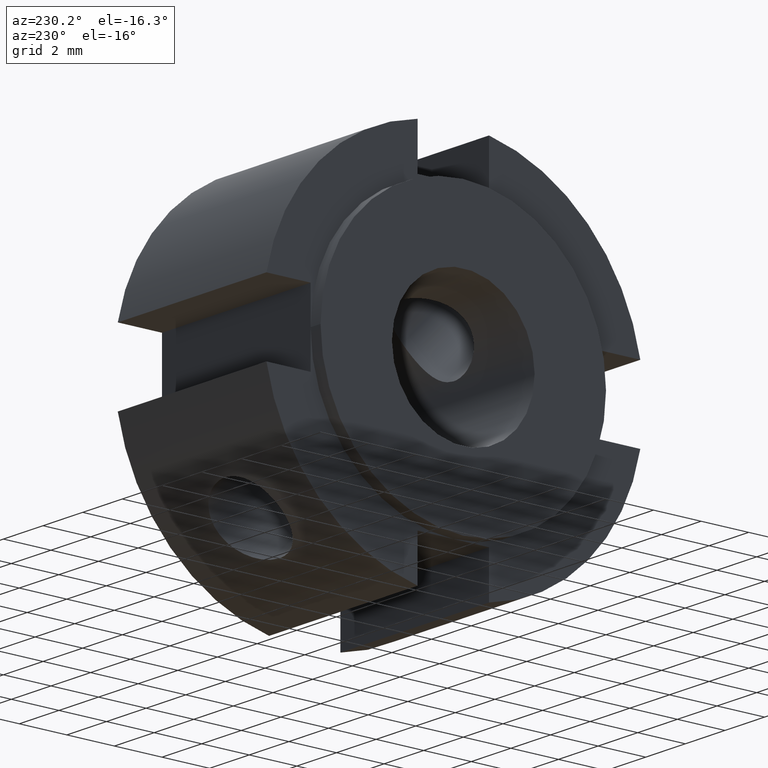
[diagram: clean part render]
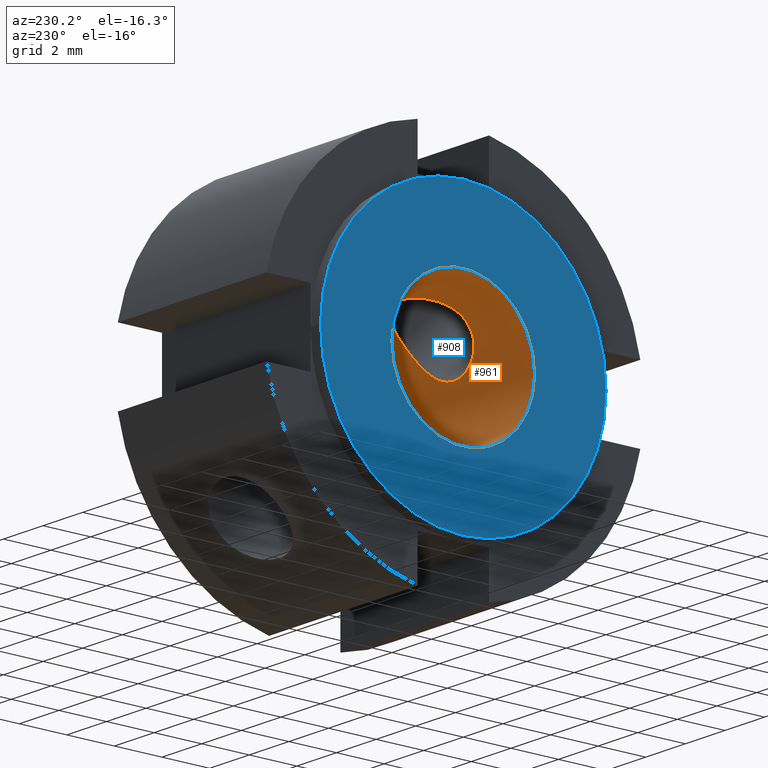
[diagram: same view with the hole feature highlighted: cylindrical wall and planar end face, labeled with their STEP entity ids]
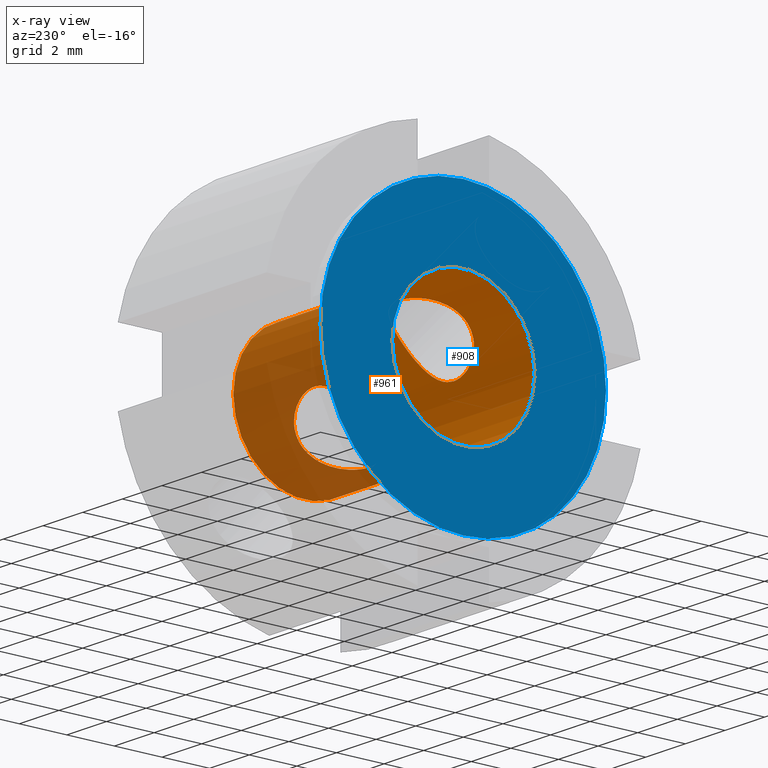
[diagram: x-ray of the same camera — body ghosted, the hole faces saturated]
A machine part, auxiliary view. The highlighted faces form one hole feature of diameter 6 mm: the cylindrical wall (entity #961, orange) and its adjacent planar end face (entity #908, blue) — they share a circular edge in the B-rep.
The next image is the same camera in x-ray (body ghosted, the hole faces saturated) — the bore reads through the body.
Wall:
#114=CARTESIAN_POINT('',(3.999999999999997,-2.931207347159852,0.638767162553068));
#115=VERTEX_POINT('',#114);
#116=CARTESIAN_POINT('',(3.999999999999997,-2.931207347159852,0.638767162553069));
#117=CARTESIAN_POINT('',(4.208935335295924,-2.931207347159852,0.638767162553069));
#118=CARTESIAN_POINT('',(4.427692286097923,-2.921333819825380,0.689227261632328));
#119=CARTESIAN_POINT('',(4.825165866552857,-2.871264237078204,0.874680584497780));
#120=CARTESIAN_POINT('',(5.004416020949543,-2.829694711386081,1.008153470477752));
#121=CARTESIAN_POINT('',(5.287470575266875,-2.712294897999460,1.291053246698173));
#122=CARTESIAN_POINT('',(5.411643091071550,-2.628246132993324,1.460749214067118));
#123=CARTESIAN_POINT('',(5.578515687710530,-2.406744657441845,1.802511078988437));
#124=CARTESIAN_POINT('',(5.620999999999997,-2.268483175927758,1.974157511191527));
#125=CARTESIAN_POINT('',(5.620999999999997,-1.974157511191522,2.268483175927762));
#126=CARTESIAN_POINT('',(5.578515687710532,-1.802511078988431,2.406744657441849));
#127=CARTESIAN_POINT('',(5.411643091071551,-1.460749214067112,2.628246132993326));
#128=CARTESIAN_POINT('',(5.287470575266875,-1.291053246698168,2.712294897999464));
#129=CARTESIAN_POINT('',(5.004416020949543,-1.008153470477747,2.829694711386085));
#130=CARTESIAN_POINT('',(4.825165866552857,-0.874680584497774,2.871264237078206));
#131=CARTESIAN_POINT('',(4.427692286097923,-0.689227261632321,2.921333819825382));
#132=CARTESIAN_POINT('',(4.208935335295924,-0.638767162553061,2.931207347159853));
#133=CARTESIAN_POINT('',(3.791064664704069,-0.638767162553061,2.931207347159853));
#134=CARTESIAN_POINT('',(3.572307713902072,-0.689227261632321,2.921333819825382));
#135=CARTESIAN_POINT('',(3.174834133447137,-0.874680584497774,2.871264237078206));
#136=CARTESIAN_POINT('',(2.995583979050451,-1.008153470477747,2.829694711386085));
#137=CARTESIAN_POINT('',(2.712529424733118,-1.291053246698168,2.712294897999464));
#138=CARTESIAN_POINT('',(2.588356908928443,-1.460749214067113,2.628246132993326));
#139=CARTESIAN_POINT('',(2.421484312289462,-1.802511078988431,2.406744657441848));
#140=CARTESIAN_POINT('',(2.378999999999997,-1.974157511191522,2.268483175927762));
#141=CARTESIAN_POINT('',(2.378999999999997,-2.268483175927758,1.974157511191527));
#142=CARTESIAN_POINT('',(2.421484312289462,-2.406744657441845,1.802511078988436));
#143=CARTESIAN_POINT('',(2.588356908928444,-2.628246132993323,1.460749214067118));
#144=CARTESIAN_POINT('',(2.712529424733119,-2.712294897999460,1.291053246698173));
#145=CARTESIAN_POINT('',(2.995583979050450,-2.829694711386081,1.008153470477752));
#146=CARTESIAN_POINT('',(3.174834133447137,-2.871264237078204,0.874680584497780));
#147=CARTESIAN_POINT('',(3.572307713902072,-2.921333819825380,0.689227261632328));
#148=CARTESIAN_POINT('',(3.791064664704070,-2.931207347159852,0.638767162553069));
#149=CARTESIAN_POINT('',(3.999999999999997,-2.931207347159852,0.638767162553069));
#150=B_SPLINE_CURVE_WITH_KNOTS('',3,(#116,#117,#118,#119,#120,#121,#122,#123,#124,#125,#126,#127,#128,#129,#130,#131,#132,#133,#134,#135,#136,#137,#138,#139,#140,#141,#142,#143,#144,#145,#146,#147,#148,#149),.UNSPECIFIED.,.T.,.U.,(4,2,2,2,2,2,2,2,2,2,2,2,2,2,2,2,4),(0.0,0.062680600588778,0.125361201177556,0.187797103201226,0.250233005224895,0.312668907248564,0.375104809272233,0.437785409861011,0.500466010449790,0.563146611038568,0.625827211627346,0.688263113651015,0.750699015674684,0.813134917698354,0.875570819722023,0.938251420310801,1.000932020899579),.UNSPECIFIED.);
#151=EDGE_CURVE('',#115,#115,#150,.T.);
#202=CARTESIAN_POINT('',(3.999999999999997,0.638767162553067,-2.931207347159852));
#203=VERTEX_POINT('',#202);
#204=CARTESIAN_POINT('',(3.999999999999997,0.638767162553066,-2.931207347159852));
#205=CARTESIAN_POINT('',(3.791064664704070,0.638767162553066,-2.931207347159852));
#206=CARTESIAN_POINT('',(3.572307713902072,0.689227261632325,-2.921333819825382));
#207=CARTESIAN_POINT('',(3.174834133447138,0.874680584497777,-2.871264237078205));
#208=CARTESIAN_POINT('',(2.995583979050451,1.008153470477748,-2.829694711386082));
#209=CARTESIAN_POINT('',(2.712529424733118,1.291053246698170,-2.712294897999461));
#210=CARTESIAN_POINT('',(2.588356908928442,1.460749214067115,-2.628246132993324));
#211=CARTESIAN_POINT('',(2.421484312289462,1.802511078988434,-2.406744657441846));
#212=CARTESIAN_POINT('',(2.378999999999997,1.974157511191524,-2.268483175927760));
#213=CARTESIAN_POINT('',(2.378999999999997,2.268483175927760,-1.974157511191524));
#214=CARTESIAN_POINT('',(2.421484312289463,2.406744657441847,-1.802511078988434));
#215=CARTESIAN_POINT('',(2.588356908928444,2.628246132993325,-1.460749214067115));
#216=CARTESIAN_POINT('',(2.712529424733118,2.712294897999462,-1.291053246698171));
#217=CARTESIAN_POINT('',(2.995583979050450,2.829694711386084,-1.008153470477749));
#218=CARTESIAN_POINT('',(3.174834133447137,2.871264237078205,-0.874680584497777));
#219=CARTESIAN_POINT('',(3.572307713902073,2.921333819825382,-0.689227261632325));
#220=CARTESIAN_POINT('',(3.791064664704069,2.931207347159853,-0.638767162553065));
#221=CARTESIAN_POINT('',(4.208935335295925,2.931207347159853,-0.638767162553065));
#222=CARTESIAN_POINT('',(4.427692286097921,2.921333819825382,-0.689227261632325));
#223=CARTESIAN_POINT('',(4.825165866552857,2.871264237078205,-0.874680584497777));
#224=CARTESIAN_POINT('',(5.004416020949543,2.829694711386084,-1.008153470477749));
#225=CARTESIAN_POINT('',(5.287470575266875,2.712294897999462,-1.291053246698170));
#226=CARTESIAN_POINT('',(5.411643091071551,2.628246132993325,-1.460749214067115));
#227=CARTESIAN_POINT('',(5.578515687710532,2.406744657441847,-1.802511078988434));
#228=CARTESIAN_POINT('',(5.620999999999997,2.268483175927760,-1.974157511191524));
#229=CARTESIAN_POINT('',(5.620999999999997,1.974157511191524,-2.268483175927760));
#230=CARTESIAN_POINT('',(5.578515687710532,1.802511078988433,-2.406744657441847));
#231=CARTESIAN_POINT('',(5.411643091071551,1.460749214067115,-2.628246132993326));
#232=CARTESIAN_POINT('',(5.287470575266875,1.291053246698169,-2.712294897999461));
#233=CARTESIAN_POINT('',(5.004416020949543,1.008153470477748,-2.829694711386082));
#234=CARTESIAN_POINT('',(4.825165866552856,0.874680584497777,-2.871264237078205));
#235=CARTESIAN_POINT('',(4.427692286097922,0.689227261632325,-2.921333819825382));
#236=CARTESIAN_POINT('',(4.208935335295925,0.638767162553066,-2.931207347159852));
#237=CARTESIAN_POINT('',(3.999999999999997,0.638767162553066,-2.931207347159852));
#238=B_SPLINE_CURVE_WITH_KNOTS('',3,(#204,#205,#206,#207,#208,#209,#210,#211,#212,#213,#214,#215,#216,#217,#218,#219,#220,#221,#222,#223,#224,#225,#226,#227,#228,#229,#230,#231,#232,#233,#234,#235,#236,#237),.UNSPECIFIED.,.T.,.U.,(4,2,2,2,2,2,2,2,2,2,2,2,2,2,2,2,4),(0.0,0.062680600588778,0.125361201177556,0.187797103201226,0.250233005224895,0.312668907248564,0.375104809272233,0.437785409861011,0.500466010449790,0.563146611038568,0.625827211627346,0.688263113651015,0.750699015674684,0.813134917698354,0.875570819722023,0.938251420310801,1.000932020899579),.UNSPECIFIED.);
#239=EDGE_CURVE('',#203,#203,#238,.T.);
#810=CARTESIAN_POINT('',(7.999999999999998,2.999999999999998,0.0));
#811=VERTEX_POINT('',#810);
#812=CARTESIAN_POINT('',(7.999999999999998,0.0,0.0));
#813=DIRECTION('',(1.0,0.0,0.0));
#814=DIRECTION('',(0.0,1.0,0.0));
#815=AXIS2_PLACEMENT_3D('',#812,#813,#814);
#816=CIRCLE('',#815,2.999999999999998);
#817=EDGE_CURVE('',#811,#811,#816,.T.);
#897=CARTESIAN_POINT('',(-2.483193E-017,3.000000000000000,0.0));
#898=VERTEX_POINT('',#897);
#899=CARTESIAN_POINT('',(-2.385245E-017,0.0,0.0));
#900=DIRECTION('',(1.0,0.0,0.0));
#901=DIRECTION('',(0.0,1.0,0.0));
#902=AXIS2_PLACEMENT_3D('',#899,#900,#901);
#903=CIRCLE('',#902,3.000000000000000);
#904=EDGE_CURVE('',#898,#898,#903,.T.);
#944=CARTESIAN_POINT('',(3.999999999999999,0.0,0.0));
#945=DIRECTION('',(1.0,0.0,0.0));
#946=DIRECTION('',(0.0,1.0,0.0));
#947=AXIS2_PLACEMENT_3D('',#944,#945,#946);
#948=CYLINDRICAL_SURFACE('',#947,2.999999999999999);
#949=ORIENTED_EDGE('',*,*,#904,.F.);
#950=EDGE_LOOP('',(#949));
#951=FACE_OUTER_BOUND('',#950,.T.);
#952=ORIENTED_EDGE('',*,*,#151,.T.);
#953=EDGE_LOOP('',(#952));
#954=FACE_BOUND('',#953,.T.);
#955=ORIENTED_EDGE('',*,*,#239,.T.);
#956=EDGE_LOOP('',(#955));
#957=FACE_BOUND('',#956,.T.);
#958=ORIENTED_EDGE('',*,*,#817,.T.);
#959=EDGE_LOOP('',(#958));
#960=FACE_BOUND('',#959,.T.);
#961=ADVANCED_FACE('',(#951,#954,#957,#960),#948,.F.);
End face:
#881=CARTESIAN_POINT('',(-1.241596E-017,4.499999999999999,0.0));
#882=DIRECTION('',(-1.0,0.0,0.0));
#883=DIRECTION('',(0.0,0.0,1.0));
#884=AXIS2_PLACEMENT_3D('',#881,#882,#883);
#885=PLANE('',#884);
#886=CARTESIAN_POINT('',(0.0,5.999999999999997,0.0));
#887=VERTEX_POINT('',#886);
#888=CARTESIAN_POINT('',(0.0,0.0,0.0));
#889=DIRECTION('',(1.0,0.0,0.0));
#890=DIRECTION('',(0.0,1.0,0.0));
#891=AXIS2_PLACEMENT_3D('',#888,#889,#890);
#892=CIRCLE('',#891,5.999999999999997);
#893=EDGE_CURVE('',#887,#887,#892,.T.);
#894=ORIENTED_EDGE('',*,*,#893,.F.);
#895=EDGE_LOOP('',(#894));
#896=FACE_OUTER_BOUND('',#895,.T.);
#897=CARTESIAN_POINT('',(-2.483193E-017,3.000000000000000,0.0));
#898=VERTEX_POINT('',#897);
#899=CARTESIAN_POINT('',(-2.385245E-017,0.0,0.0));
#900=DIRECTION('',(1.0,0.0,0.0));
#901=DIRECTION('',(0.0,1.0,0.0));
#902=AXIS2_PLACEMENT_3D('',#899,#900,#901);
#903=CIRCLE('',#902,3.000000000000000);
#904=EDGE_CURVE('',#898,#898,#903,.T.);
#905=ORIENTED_EDGE('',*,*,#904,.T.);
#906=EDGE_LOOP('',(#905));
#907=FACE_BOUND('',#906,.T.);
#908=ADVANCED_FACE('',(#896,#907),#885,.T.);